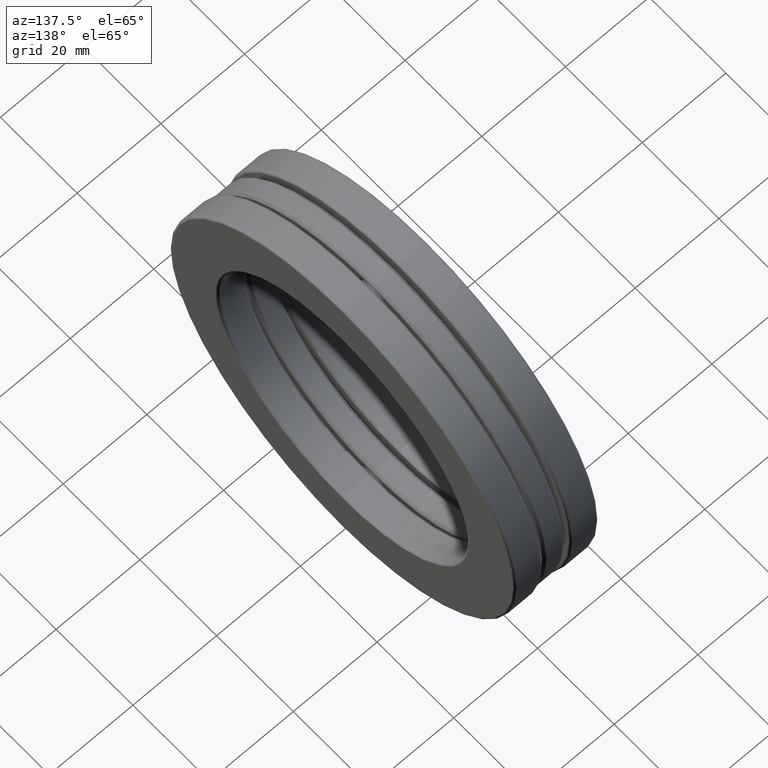
[diagram: clean part render]
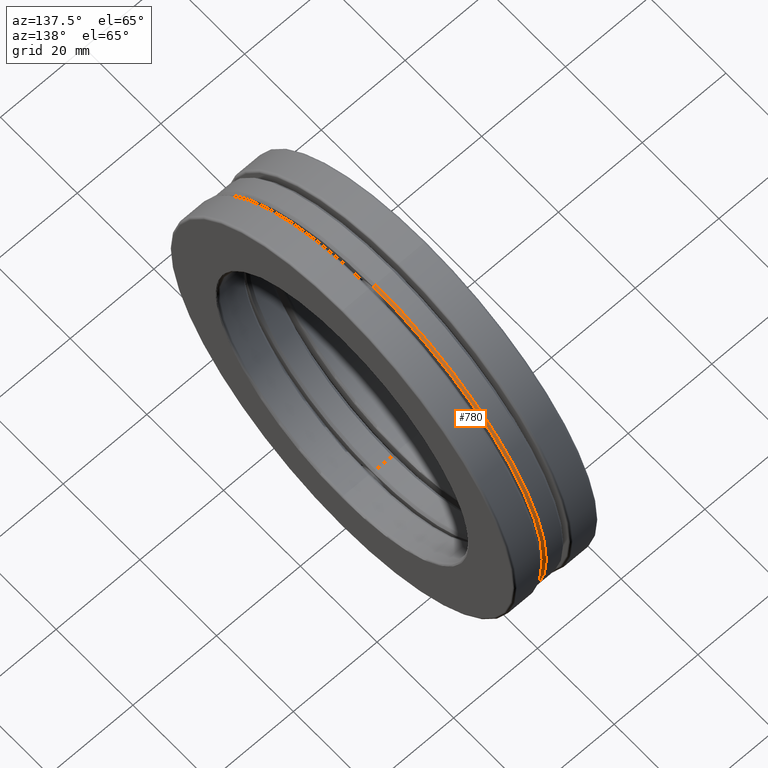
[diagram: same view with one face highlighted and labeled with its STEP entity id]
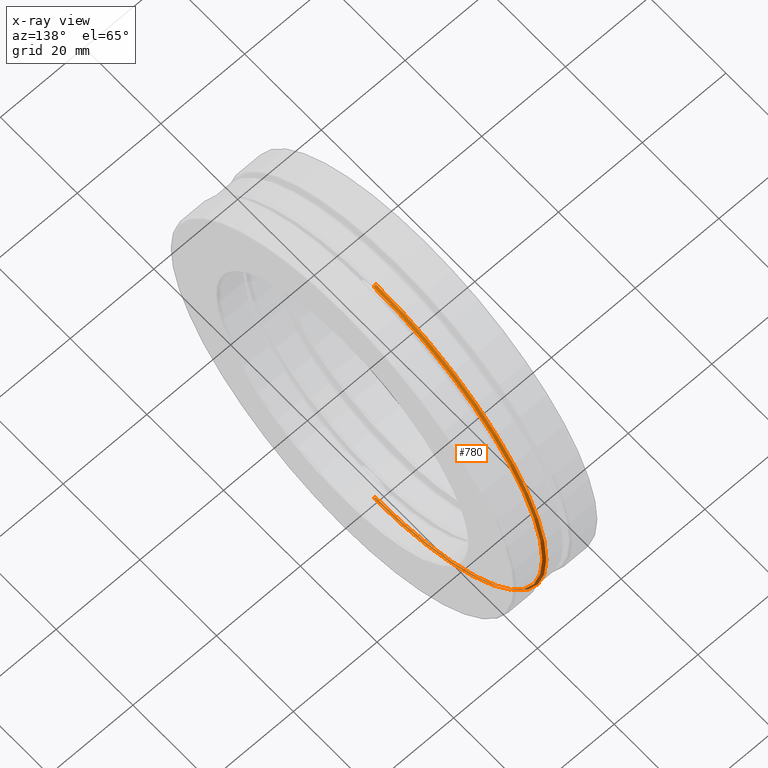
[diagram: x-ray of the same camera — body ghosted, the highlighted face saturated]
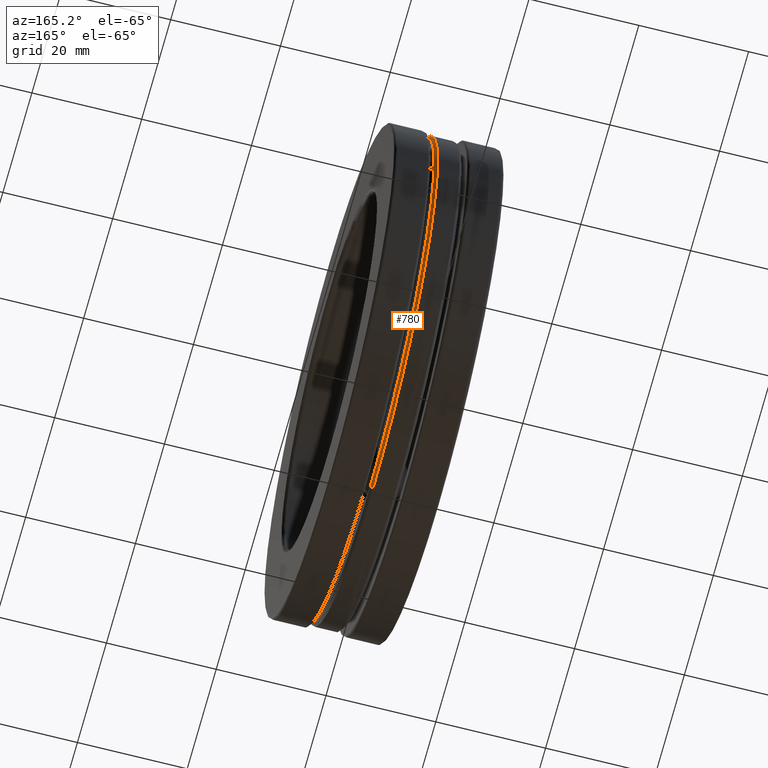
[diagram: same view with one face highlighted and labeled with its STEP entity id]
A machine part, auxiliary view. The second image highlights one B-rep face of the part: STEP entity #780.
The next image is the same camera in x-ray: the body ghosted, the highlighted face saturated — about 16% of this face is hidden behind the body in this view.
A second angle (auxiliary view) of the same face is appended — the face is thin or edge-on in the first view.
In plain terms, the highlighted conical surface has half-angle 45 deg.
Its self-contained STEP definition (entity closure, byte-faithful):
#11 = CIRCLE ( 'NONE', #436, 1.731499999999999817 ) ;
#69 = EDGE_CURVE ( 'NONE', #793, #1174, #316, .T. ) ;
#104 = CARTESIAN_POINT ( 'NONE',  ( 0.07837500000000026390, 0.0000000000000000000, 1.751499999999999835 ) ) ;
#115 = EDGE_CURVE ( 'NONE', #126, #683, #338, .T. ) ;
#126 = VERTEX_POINT ( 'NONE', #1463 ) ;
#163 = DIRECTION ( 'NONE',  ( 0.0000000000000000000, 0.0000000000000000000, 1.000000000000000000 ) ) ;
#185 = CARTESIAN_POINT ( 'NONE',  ( 0.07837500000000026390, 2.144968868706589015E-16, -1.751499999999999835 ) ) ;
#198 = CONICAL_SURFACE ( 'NONE', #650, 1.731499999999999817, 0.7853981633974512766 ) ;
#291 = ORIENTED_EDGE ( 'NONE', *, *, #583, .F. ) ;
#316 = LINE ( 'NONE', #440, #1288 ) ;
#338 = LINE ( 'NONE', #1054, #663 ) ;
#375 = CIRCLE ( 'NONE', #738, 1.751499999999999835 ) ;
#400 = CARTESIAN_POINT ( 'NONE',  ( 0.09837500000000019840, 0.0000000000000000000, 0.0000000000000000000 ) ) ;
#409 = CARTESIAN_POINT ( 'NONE',  ( 0.09837500000000019840, 2.132722400715115510E-16, -1.731499999999999817 ) ) ;
#436 = AXIS2_PLACEMENT_3D ( 'NONE', #1585, #1317, #163 ) ;
#440 = CARTESIAN_POINT ( 'NONE',  ( 0.09837500000000019840, 2.120475932723642005E-16, -1.731499999999999817 ) ) ;
#453 = EDGE_LOOP ( 'NONE', ( #765, #1729, #291, #1284 ) ) ;
#457 = DIRECTION ( 'NONE',  ( -0.7071067811865454633, 8.659560562354959975E-17, -0.7071067811865496822 ) ) ;
#583 = EDGE_CURVE ( 'NONE', #683, #1174, #375, .T. ) ;
#591 = EDGE_CURVE ( 'NONE', #126, #793, #11, .T. ) ;
#650 = AXIS2_PLACEMENT_3D ( 'NONE', #400, #807, #817 ) ;
#663 = VECTOR ( 'NONE', #1187, 39.37007874015748143 ) ;
#683 = VERTEX_POINT ( 'NONE', #104 ) ;
#738 = AXIS2_PLACEMENT_3D ( 'NONE', #1122, #854, #1417 ) ;
#765 = ORIENTED_EDGE ( 'NONE', *, *, #591, .T. ) ;
#780 = ADVANCED_FACE ( 'NONE', ( #1345 ), #198, .T. ) ;
#793 = VERTEX_POINT ( 'NONE', #409 ) ;
#807 = DIRECTION ( 'NONE',  ( -1.000000000000000000, -0.0000000000000000000, -0.0000000000000000000 ) ) ;
#817 = DIRECTION ( 'NONE',  ( 0.0000000000000000000, 0.0000000000000000000, 1.000000000000000000 ) ) ;
#854 = DIRECTION ( 'NONE',  ( -1.000000000000000000, -0.0000000000000000000, -0.0000000000000000000 ) ) ;
#1054 = CARTESIAN_POINT ( 'NONE',  ( 0.09837500000000019840, 0.0000000000000000000, 1.731499999999999817 ) ) ;
#1122 = CARTESIAN_POINT ( 'NONE',  ( 0.07837500000000026390, 0.0000000000000000000, 0.0000000000000000000 ) ) ;
#1174 = VERTEX_POINT ( 'NONE', #185 ) ;
#1187 = DIRECTION ( 'NONE',  ( -0.7071067811865454633, 0.0000000000000000000, 0.7071067811865496822 ) ) ;
#1284 = ORIENTED_EDGE ( 'NONE', *, *, #115, .F. ) ;
#1288 = VECTOR ( 'NONE', #457, 39.37007874015748143 ) ;
#1317 = DIRECTION ( 'NONE',  ( -1.000000000000000000, -0.0000000000000000000, -0.0000000000000000000 ) ) ;
#1345 = FACE_OUTER_BOUND ( 'NONE', #453, .T. ) ;
#1417 = DIRECTION ( 'NONE',  ( 0.0000000000000000000, 0.0000000000000000000, 1.000000000000000000 ) ) ;
#1463 = CARTESIAN_POINT ( 'NONE',  ( 0.09837500000000019840, 0.0000000000000000000, 1.731499999999999817 ) ) ;
#1585 = CARTESIAN_POINT ( 'NONE',  ( 0.09837500000000019840, 0.0000000000000000000, 0.0000000000000000000 ) ) ;
#1729 = ORIENTED_EDGE ( 'NONE', *, *, #69, .T. ) ;